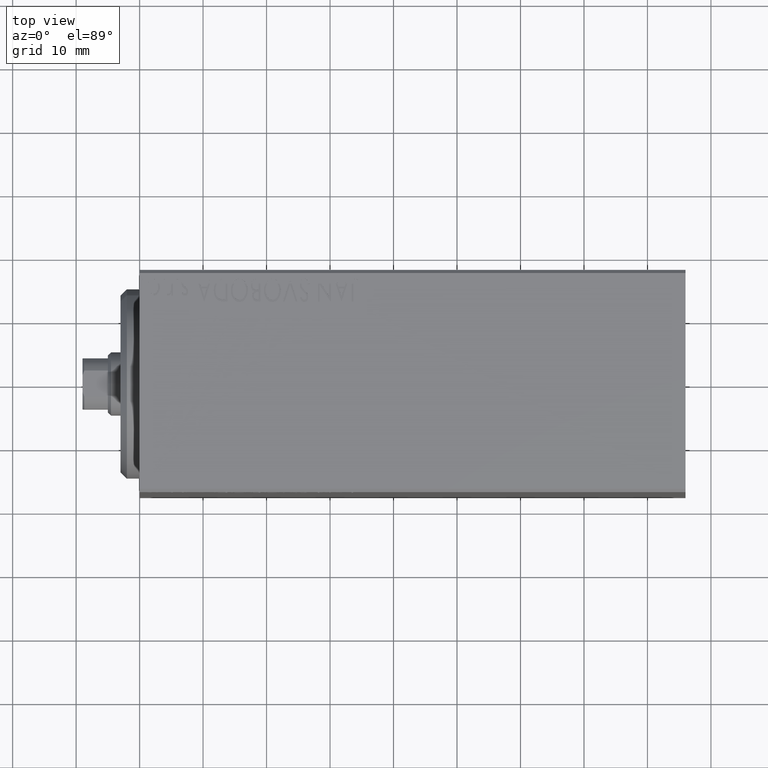
[diagram: clean part render]
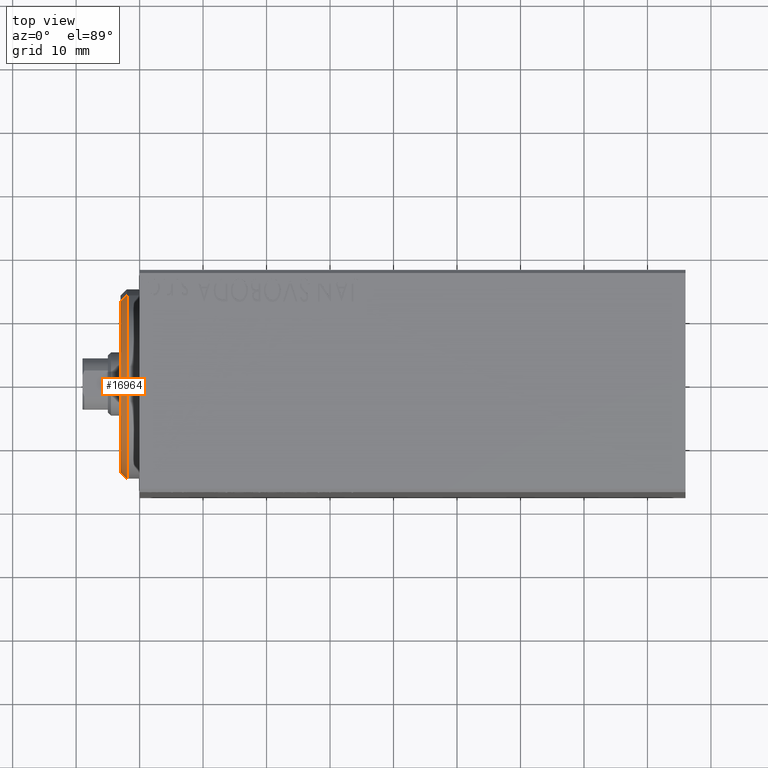
[diagram: same view with one face highlighted and labeled with its STEP entity id]
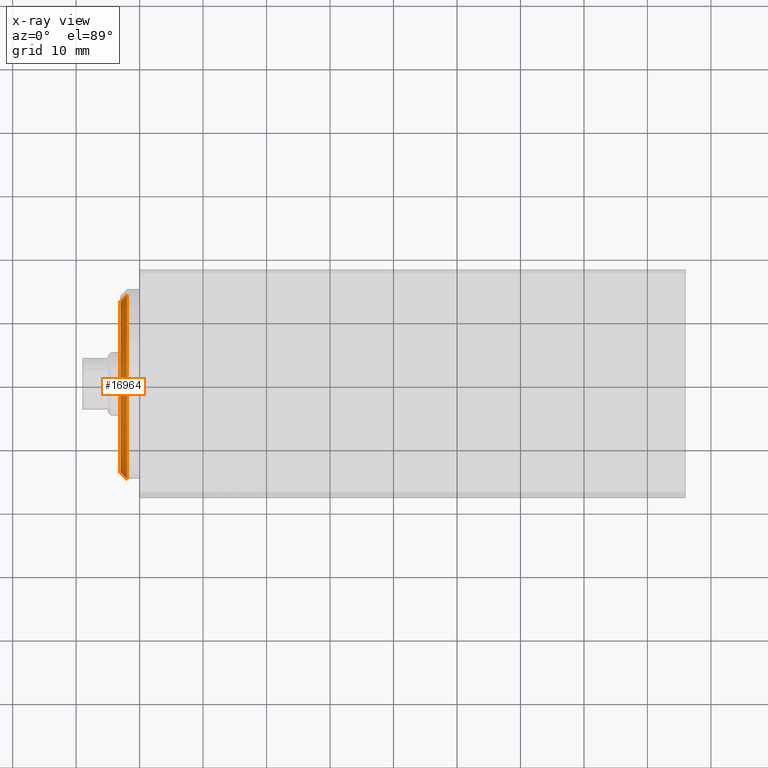
[diagram: x-ray of the same camera — body ghosted, the highlighted face saturated]
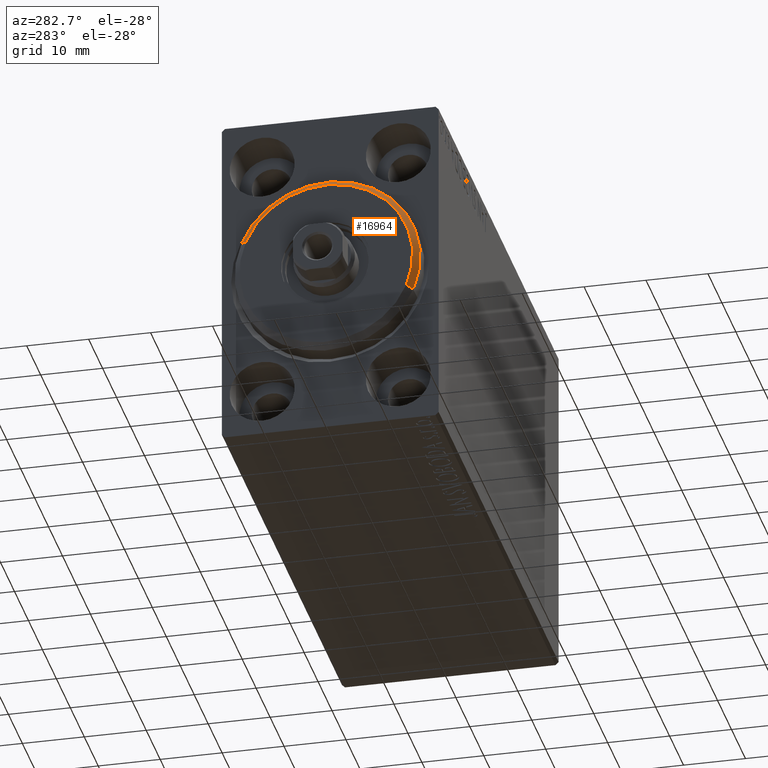
[diagram: same view with one face highlighted and labeled with its STEP entity id]
A machine part, top view. The second image highlights one B-rep face of the part: STEP entity #16964.
The next image is the same camera in x-ray: the body ghosted, the highlighted face saturated — about 0% of this face is hidden behind the body in this view.
A second angle (auxiliary view) of the same face is appended — the face is thin or edge-on in the first view.
In plain terms, the highlighted conical surface has half-angle 45 deg.
Its self-contained STEP definition (entity closure, byte-faithful):
#90 = AXIS2_PLACEMENT_3D ( 'NONE', #27656, #10646, #24204 ) ;
#3706 = VECTOR ( 'NONE', #5952, 999.9999999999998863 ) ;
#4864 = CARTESIAN_POINT ( 'NONE',  ( 1.999999999999995781, 0.000000000000000000, 15.00000000000000000 ) ) ;
#5952 = DIRECTION ( 'NONE',  ( -0.7071067811865482389, 8.659560562354926695E-17, -0.7071067811865469066 ) ) ;
#8341 = EDGE_CURVE ( 'NONE', #25980, #29639, #27041, .T. ) ;
#9047 = ORIENTED_EDGE ( 'NONE', *, *, #10560, .F. ) ;
#9730 = LINE ( 'NONE', #30365, #3706 ) ;
#10264 = ORIENTED_EDGE ( 'NONE', *, *, #35186, .F. ) ;
#10560 = EDGE_CURVE ( 'NONE', #42923, #25980, #9730, .T. ) ;
#10646 = DIRECTION ( 'NONE',  ( -1.000000000000000000, 0.000000000000000000, 0.000000000000000000 ) ) ;
#10967 = DIRECTION ( 'NONE',  ( 0.000000000000000000, 0.000000000000000000, 1.000000000000000000 ) ) ;
#11567 = CARTESIAN_POINT ( 'NONE',  ( 3.000000000000000000, 1.775737858763662015E-15, -13.99999999999999645 ) ) ;
#12241 = DIRECTION ( 'NONE',  ( 0.000000000000000000, 0.000000000000000000, -1.000000000000000000 ) ) ;
#13869 = CARTESIAN_POINT ( 'NONE',  ( 3.000000000000000000, 0.000000000000000000, 13.99999999999999645 ) ) ;
#14616 = VECTOR ( 'NONE', #23870, 999.9999999999998863 ) ;
#14749 = CARTESIAN_POINT ( 'NONE',  ( 3.000000000000000000, 0.000000000000000000, 0.000000000000000000 ) ) ;
#14835 = AXIS2_PLACEMENT_3D ( 'NONE', #25144, #35541, #12241 ) ;
#16964 = ADVANCED_FACE ( 'NONE', ( #30510 ), #35004, .T. ) ;
#18291 = DIRECTION ( 'NONE',  ( -1.000000000000000000, 0.000000000000000000, 0.000000000000000000 ) ) ;
#18574 = ORIENTED_EDGE ( 'NONE', *, *, #8341, .F. ) ;
#20163 = AXIS2_PLACEMENT_3D ( 'NONE', #14749, #18291, #10967 ) ;
#21045 = VERTEX_POINT ( 'NONE', #22003 ) ;
#21447 = EDGE_CURVE ( 'NONE', #21045, #29639, #40931, .T. ) ;
#22003 = CARTESIAN_POINT ( 'NONE',  ( 3.000000000000000000, 0.000000000000000000, 13.99999999999999645 ) ) ;
#23733 = CARTESIAN_POINT ( 'NONE',  ( 1.999999999999995781, 1.836970198721029589E-15, -15.00000000000000000 ) ) ;
#23870 = DIRECTION ( 'NONE',  ( -0.7071067811865482389, 0.000000000000000000, 0.7071067811865469066 ) ) ;
#24204 = DIRECTION ( 'NONE',  ( 0.000000000000000000, 0.000000000000000000, -1.000000000000000000 ) ) ;
#25144 = CARTESIAN_POINT ( 'NONE',  ( 3.000000000000000000, 0.000000000000000000, 0.000000000000000000 ) ) ;
#25980 = VERTEX_POINT ( 'NONE', #23733 ) ;
#26585 = ORIENTED_EDGE ( 'NONE', *, *, #21447, .T. ) ;
#27041 = CIRCLE ( 'NONE', #90, 15.00000000000000000 ) ;
#27656 = CARTESIAN_POINT ( 'NONE',  ( 1.999999999999995781, 0.000000000000000000, 0.000000000000000000 ) ) ;
#29639 = VERTEX_POINT ( 'NONE', #4864 ) ;
#30365 = CARTESIAN_POINT ( 'NONE',  ( 3.000000000000000000, 1.714505518806294244E-15, -13.99999999999999645 ) ) ;
#30510 = FACE_OUTER_BOUND ( 'NONE', #39700, .T. ) ;
#33964 = CIRCLE ( 'NONE', #14835, 13.99999999999999645 ) ;
#35004 = CONICAL_SURFACE ( 'NONE', #20163, 13.99999999999999645, 0.7853981633974473908 ) ;
#35186 = EDGE_CURVE ( 'NONE', #21045, #42923, #33964, .T. ) ;
#35541 = DIRECTION ( 'NONE',  ( 1.000000000000000000, -0.000000000000000000, 0.000000000000000000 ) ) ;
#39700 = EDGE_LOOP ( 'NONE', ( #9047, #10264, #26585, #18574 ) ) ;
#40931 = LINE ( 'NONE', #13869, #14616 ) ;
#42923 = VERTEX_POINT ( 'NONE', #11567 ) ;